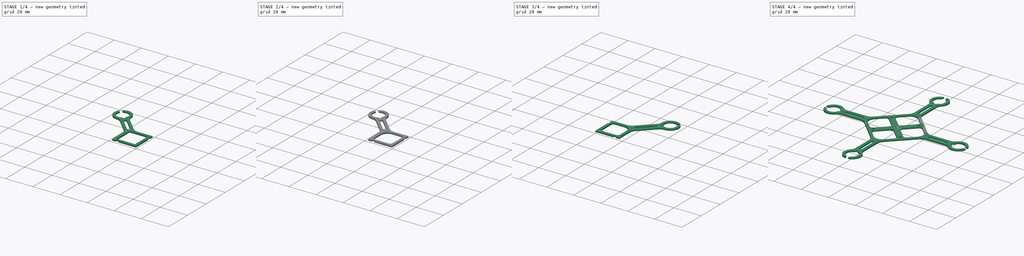
[diagram: build sequence overview — one tinted view per stage of 4, left to right]
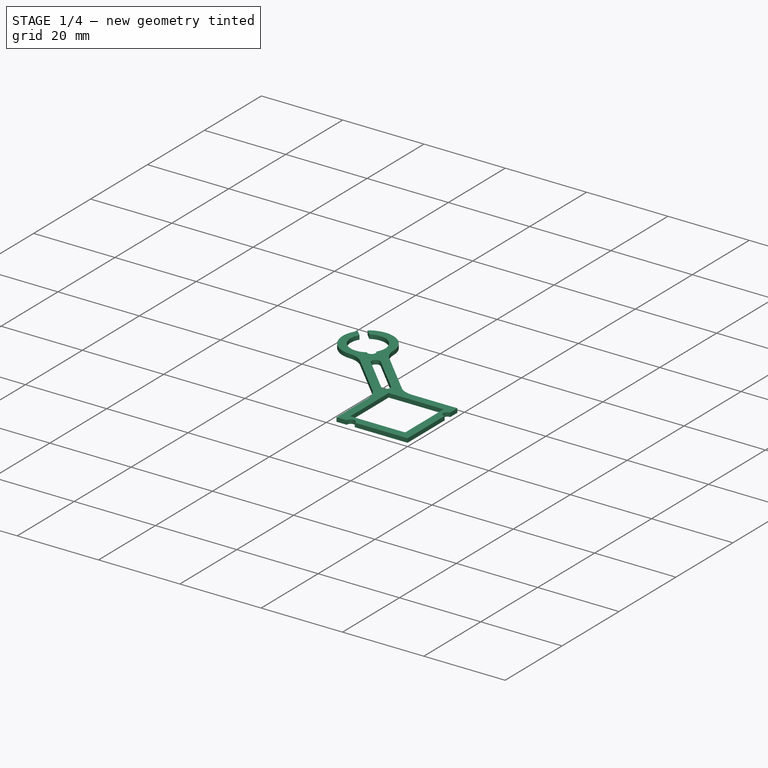
[diagram: stage 1 of 4 — iso view after this stage's code; geometry added in this stage tinted green]
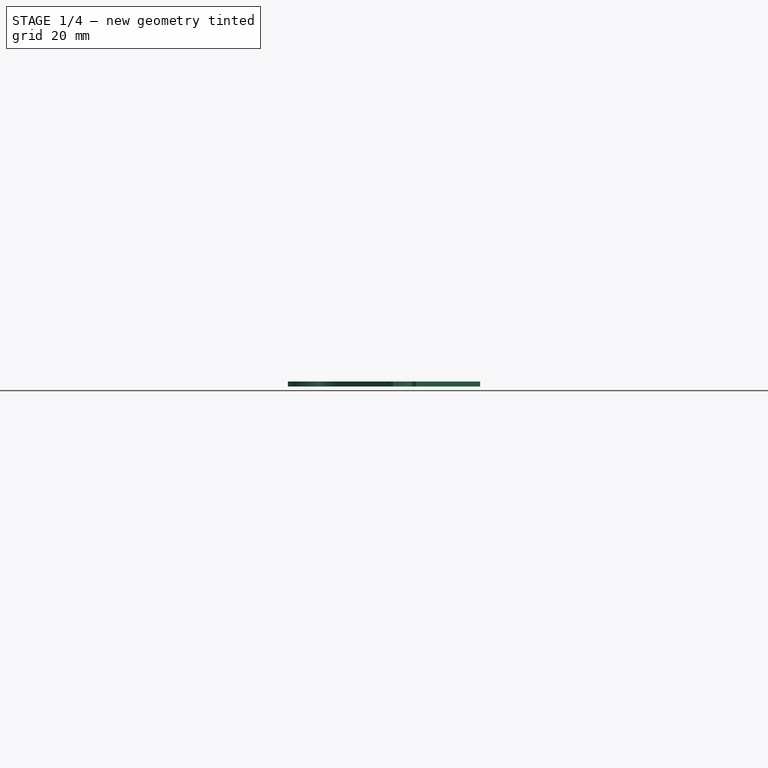
[diagram: stage 1 of 4 — front view after this stage's code; geometry added in this stage tinted green]
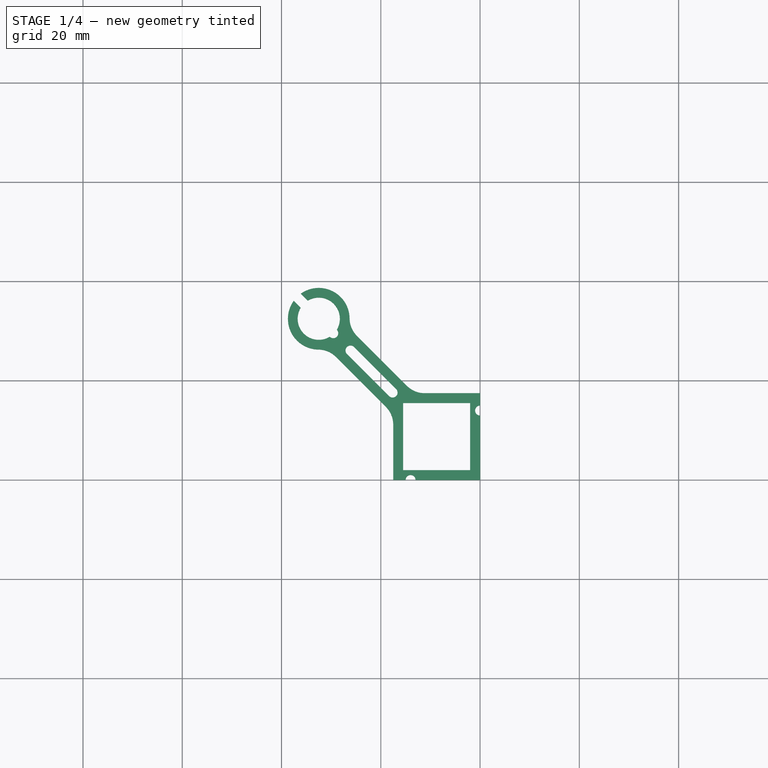
[diagram: stage 1 of 4 — top view after this stage's code; geometry added in this stage tinted green]
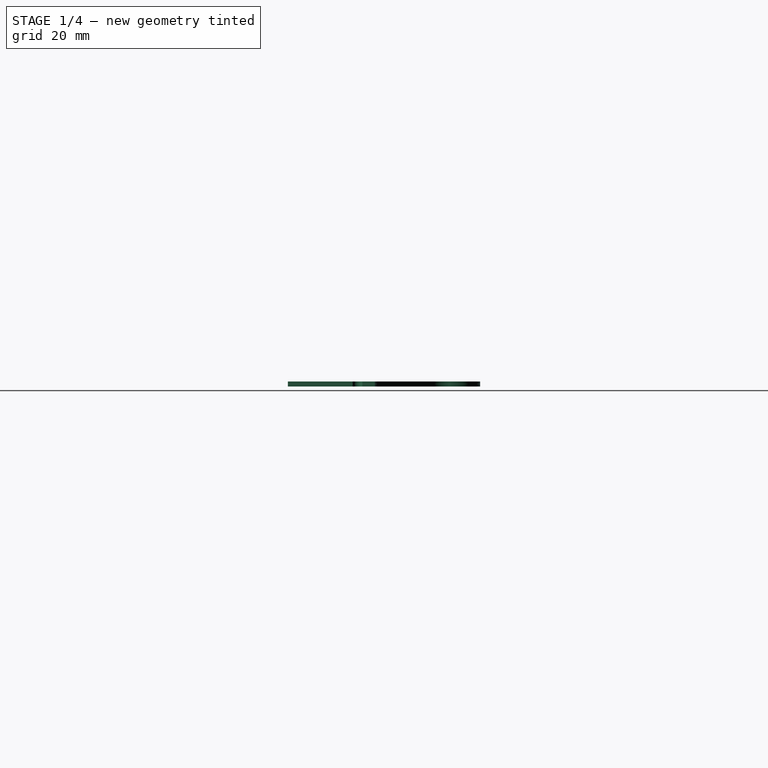
[diagram: stage 1 of 4 — right view after this stage's code; geometry added in this stage tinted green]
FCSTD DOCUMENT  (FreeCAD 0.16R6703 (Git))
Label: micro_kal_v2
License: All rights reserved
LicenseURL: http://en.wikipedia.org/wiki/All_rights_reserved
objects: App::FeaturePython×7, Drawing::FeatureViewPython×7, PartDesign::Fillet×4, Part::Mirroring×3, Sketcher::SketchObject×1, PartDesign::Pad×1, Part::MultiFuse×1, Drawing::FeatureViewPart×1, Drawing::FeaturePage×1
note: 11 computed .brp shape members not serialized (recipe doc carries the construction recipe); baked Part::Feature solids carry a one-line shape summary decoded from their .brp

FEATURE [Sketcher::SketchObject] Sketch
  sketch-geometry (33):
    g0: ArcOfCircle CenterX=-32.5 CenterY=32.5 CenterZ=0 NormalX=0 NormalY=0 NormalZ=1 Radius=6.2117 StartAngle=6.00182 EndAngle=8.47769
    g1: LineSegment StartX=-17.5 StartY=13.2574 StartZ=0 EndX=-17.5 EndY=0 EndZ=0
    g2: ArcOfCircle CenterX=-32.5 CenterY=32.5 CenterZ=0 NormalX=0 NormalY=0 NormalZ=1 Radius=6.2117 StartAngle=2.51788 EndAngle=4.99376
    g3: LineSegment StartX=-30.7752 StartY=26.5326 StartZ=0 EndX=-17.5 EndY=13.2574 EndZ=0
    g4: LineSegment StartX=0 StartY=17.5 StartZ=0 EndX=-13.2574 EndY=17.5 EndZ=0
    g5: LineSegment StartX=-26.5326 StartY=30.7752 StartZ=0 EndX=-13.2574 EndY=17.5 EndZ=0
    g6: LineSegment StartX=-15.5 StartY=15.5 StartZ=0 EndX=-2 EndY=15.5 EndZ=0
    g7: LineSegment StartX=-2 StartY=15.5 StartZ=0 EndX=-2 EndY=2 EndZ=0
    g8: LineSegment StartX=-2 StartY=2 StartZ=0 EndX=-15.5 EndY=2 EndZ=0
    g9: LineSegment StartX=-15.5 StartY=2 StartZ=0 EndX=-15.5 EndY=15.5 EndZ=0
    g10: ArcOfCircle CenterX=-14 CenterY=0 CenterZ=0 NormalX=0 NormalY=0 NormalZ=1 Radius=1 StartAngle=0 EndAngle=3.14159
    g11: ArcOfCircle CenterX=0 CenterY=14 CenterZ=0 NormalX=0 NormalY=0 NormalZ=1 Radius=1 StartAngle=1.5708 EndAngle=4.71239
    g12: LineSegment StartX=-17.5 StartY=0 StartZ=0 EndX=-15 EndY=0 EndZ=0
    g13: LineSegment StartX=-13 StartY=0 StartZ=0 EndX=0 EndY=0 EndZ=0
    g14: LineSegment StartX=0 StartY=13 StartZ=0 EndX=0 EndY=0 EndZ=0
    g15: LineSegment StartX=0 StartY=17.5 StartZ=0 EndX=0 EndY=15 EndZ=0
    g16: ArcOfCircle CenterX=-26.1066 CenterY=26.1066 CenterZ=0 NormalX=0 NormalY=0 NormalZ=1 Radius=1 StartAngle=0.785398 EndAngle=3.92699
    g17: ArcOfCircle CenterX=-17.6213 CenterY=17.6213 CenterZ=0 NormalX=0 NormalY=0 NormalZ=1 Radius=1 StartAngle=3.92699 EndAngle=7.06858
    g18: LineSegment StartX=-26.8137 StartY=25.3995 StartZ=0 EndX=-18.3284 EndY=16.9142 EndZ=0
    g19: LineSegment StartX=-25.3995 StartY=26.8137 StartZ=0 EndX=-16.9142 EndY=18.3284 EndZ=0
    g20: ArcOfCircle CenterX=-32.5 CenterY=32.5 CenterZ=0 NormalX=0 NormalY=0 NormalZ=1 Radius=4.25 StartAngle=5.73531 EndAngle=8.40186
    g21: ArcOfCircle CenterX=-32.5 CenterY=32.5 CenterZ=0 NormalX=0 NormalY=0 NormalZ=1 Radius=4.25 StartAngle=2.59372 EndAngle=5.26027
    g22: LineSegment [constr] StartX=-42.4264 StartY=42.4264 StartZ=0 EndX=0 EndY=0 EndZ=0
    g23: LineSegment [constr] StartX=-32.5 StartY=32.5 StartZ=0 EndX=-32.5 EndY=0 EndZ=0
    g24: LineSegment [constr] StartX=-32.5 StartY=32.5 StartZ=0 EndX=0 EndY=32.5 EndZ=0
    g25: LineSegment [constr] StartX=-17.5001 StartY=-7.3425e-05 StartZ=0 EndX=0.0190191 EndY=17.519 EndZ=0
    g26: LineSegment [constr] StartX=-26.8137 StartY=25.3995 StartZ=0 EndX=-25.3995 EndY=26.8137 EndZ=0
    g27: ArcOfCircle CenterX=-29.5792 CenterY=29.5792 CenterZ=0 NormalX=0 NormalY=0 NormalZ=1 Radius=1 StartAngle=3.92699 EndAngle=7.06858
    g28: LineSegment StartX=-37.5422 StartY=36.1279 StartZ=0 EndX=-36.1279 EndY=34.7137 EndZ=0
    g29: LineSegment StartX=-36.1279 StartY=37.5422 StartZ=0 EndX=-34.7137 EndY=36.1279 EndZ=0
    g30: LineSegment [constr] StartX=-36.1279 StartY=37.5422 StartZ=0 EndX=-37.5422 EndY=36.1279 EndZ=0
    g31: LineSegment [constr] StartX=-34.7137 StartY=36.1279 StartZ=0 EndX=-36.1279 EndY=34.7137 EndZ=0
    g32: LineSegment [constr] StartX=-30.2863 StartY=28.8721 StartZ=0 EndX=-28.8721 EndY=30.2863 EndZ=0
  constraints (102):
    c: Vertical(g1)
    c: Equal(g0,g2)
    c: Coincident(g0,g2)
    c: Coincident(g3,g2)
    c: Coincident(g3,g1)
    c: Horizontal(g4)
    c: Coincident(g5,g0)
    c: Coincident(g5,g4)
    c: Parallel(g5,g3)
    c: Equal(g3,g5)
    c: Angle(g20,g21) = 0.523599
    c: Coincident(g6,g7)
    c: Coincident(g7,g8)
    c: Coincident(g8,g9)
    c: Coincident(g9,g6)
    c: Horizontal(g6)
    c: Vertical(g7)
    c: Vertical(g9)
    c: Equal(g6,g7)
    c: Equal(g7,g9)
    c: PointOnObject(g10,g-1)
    c: Equal(g10,g11)
    c: Radius(g10) = 1
    c: PointOnObject(g1,g-1)
    c: Distance(g4,g1) = 6
    c: Coincident(g12,g1)
    c: Horizontal(g12)
    c: Coincident(g13,g-1)
    c: Horizontal(g13)
    c: Coincident(g15,g4)
    c: Vertical(g15)
    c: Coincident(g11,g15)
    c: Coincident(g10,g13)
    c: Coincident(g10,g12)
    c: DistanceX(g1,g-1) = 17.5
    c: Tangent(g16,g19) = 1.5708
    c: Tangent(g16,g18) = -1.5708
    c: Tangent(g18,g17) = -1.5708
    c: Tangent(g19,g17) = 1.5708
    c: Equal(g16,g17)
    c: Parallel(g3,g18)
    c: Distance(g19) = 12
    c: Distance(g17,g6) = 3
    c: Radius(g20) = 4.25
    c: Equal(g1,g4)
    c: Angle(g13,g5) = 2.35619
    c: Coincident(g22,g-1)
    c: Coincident(g14,g11)
    c: Vertical(g14)
    c: Coincident(g-1,g14)
    c: Distance(g22) = 60
    c: Coincident(g23,g0)
    c: PointOnObject(g23,g-1)
    c: Vertical(g23)
    c: Coincident(g24,g0)
    c: PointOnObject(g24,g-2)
    c: Horizontal(g24)
    c: Equal(g24,g23)
    c: DistanceY(g23,g23) = 32.5
    c: Equal(g13,g14)
    c: DistanceX(g13,g13) = 13
    c: PointOnObject(g6,g22)
    c: PointOnObject(g16,g22)
    c: Coincident(g26,g16)
    c: Coincident(g26,g16)
    c: Angle(g20,g21) = 0.174533
    c: Coincident(g21,g0)
    c: Coincident(g20,g0)
    c: Distance(g26) = 2
    c: PointOnObject(g27,g22)
    c: Symmetric(g27,g27,g22)
    c: Radius(g27) = 1
    c: PointOnObject(g20,g27)
    c: PointOnObject(g21,g27)
    c: Coincident(g27,g21)
    c: Coincident(g28,g2)
    c: Coincident(g28,g21)
    c: Coincident(g27,g20)
    c: Equal(g21,g20)
    c: Symmetric(g2,g0,g22)
    c: Coincident(g29,g0)
    c: Coincident(g29,g20)
    c: Symmetric(g20,g21,g22)
    c: Coincident(g30,g0)
    c: Coincident(g30,g2)
    c: Coincident(g31,g20)
    c: Coincident(g31,g21)
    c: Distance(g31) = 2
    c: Equal(g30,g31)
    c: DistanceY(g6,g4) = 2
    c: PointOnObject(g4,g25)
    c: DistanceX(g7,g-1) = 2
    c: PointOnObject(g6,g25)
    c: Equal(g6,g8)
    c: Equal(g4,g1)
    c: PointOnObject(g11,g-2)
    c: PointOnObject(g11,g-2)
    c: Distance(g29) = 2
    c: Equal(g28,g29)
    c: Coincident(g32,g21)
    c: Coincident(g32,g20)
    c: PointOnObject(g27,g32)
FEATURE [PartDesign::Pad] Pad
  Length = 1
  Length2 = 100
  Sketch = -> Sketch
  Type = 0
FEATURE [PartDesign::Fillet] Fillet
  Base = -> Pad [Edge26,Edge5,Edge2,Edge29]
  Radius = 5
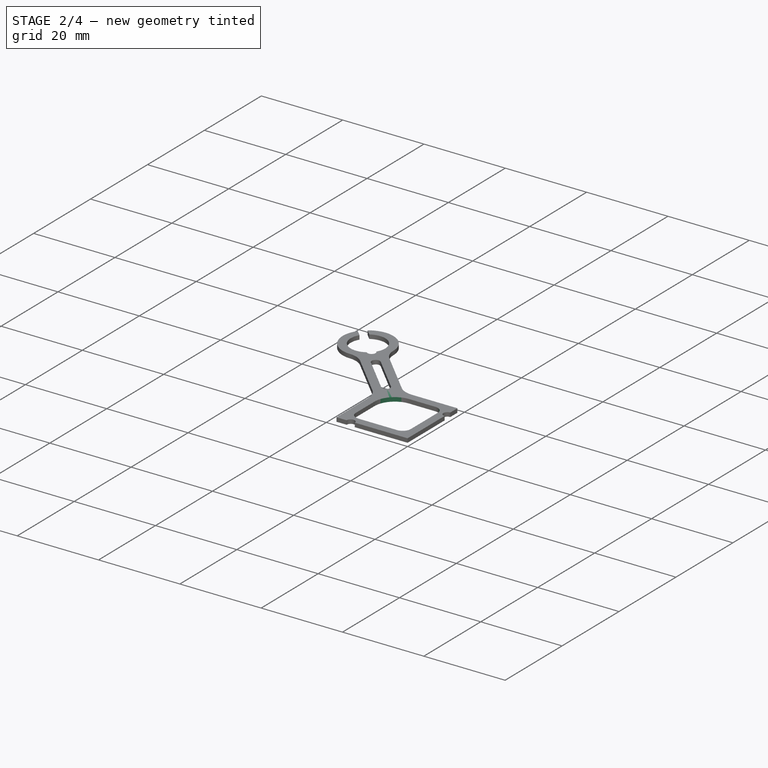
[diagram: stage 2 of 4 — iso view after this stage's code; geometry added in this stage tinted green]
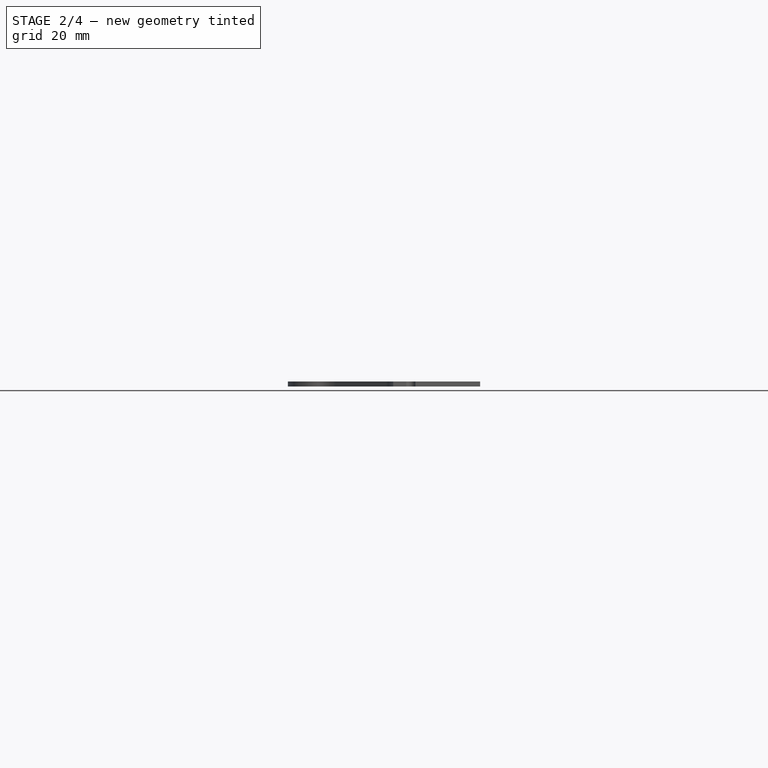
[diagram: stage 2 of 4 — front view after this stage's code; geometry added in this stage tinted green]
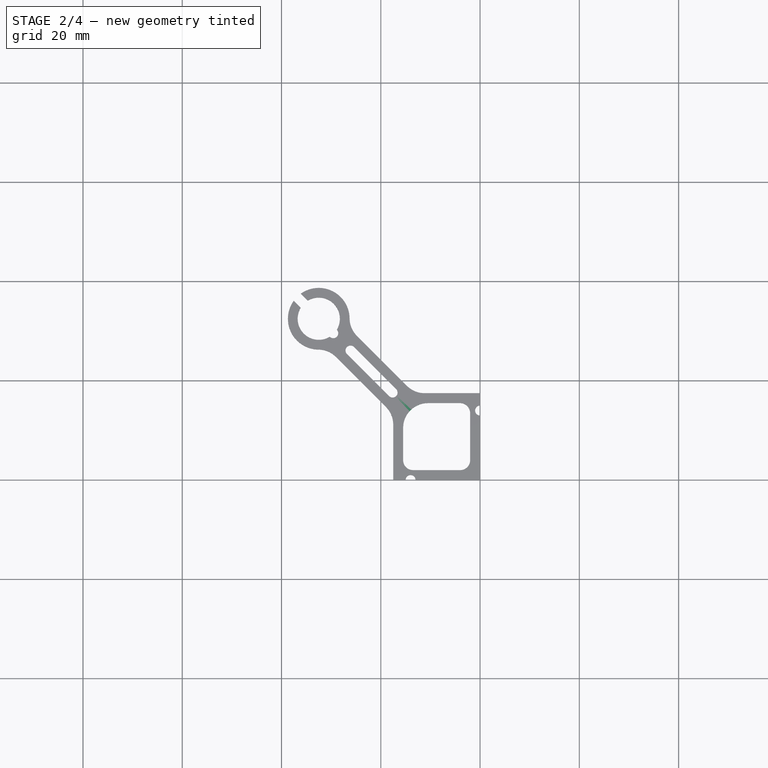
[diagram: stage 2 of 4 — top view after this stage's code; geometry added in this stage tinted green]
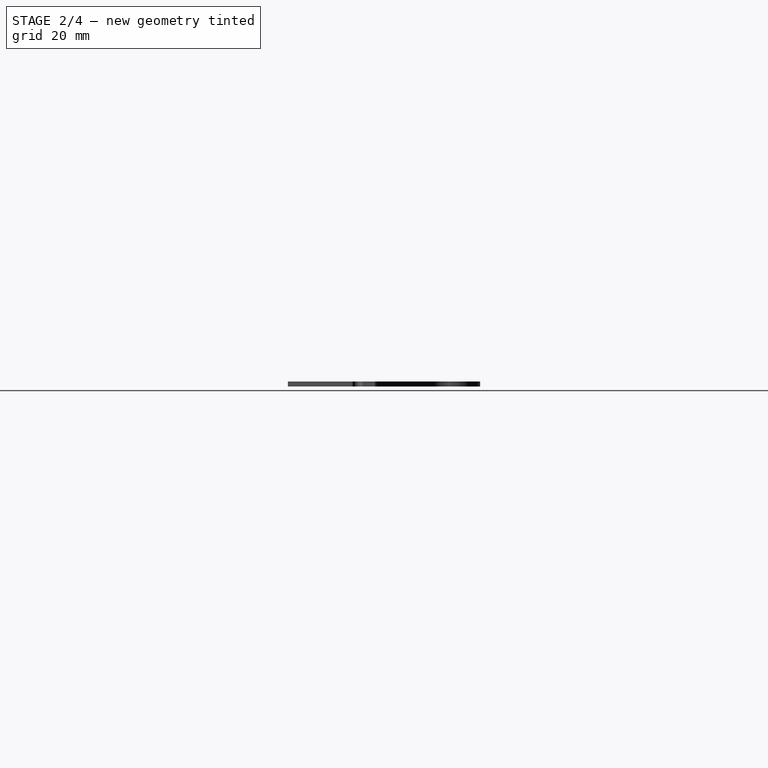
[diagram: stage 2 of 4 — right view after this stage's code; geometry added in this stage tinted green]
FEATURE [PartDesign::Fillet] Fillet001
  Base = -> Fillet [Edge80]
  Radius = 5
FEATURE [PartDesign::Fillet] Fillet002
  Base = -> Fillet001 [Edge32,Edge36,Edge38]
  Radius = 2
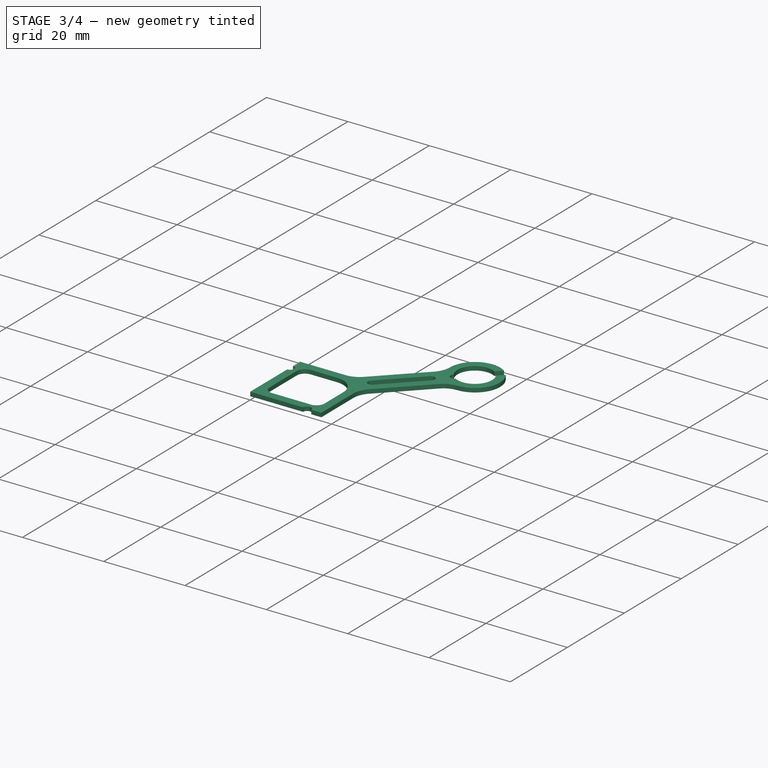
[diagram: stage 3 of 4 — iso view after this stage's code; geometry added in this stage tinted green]
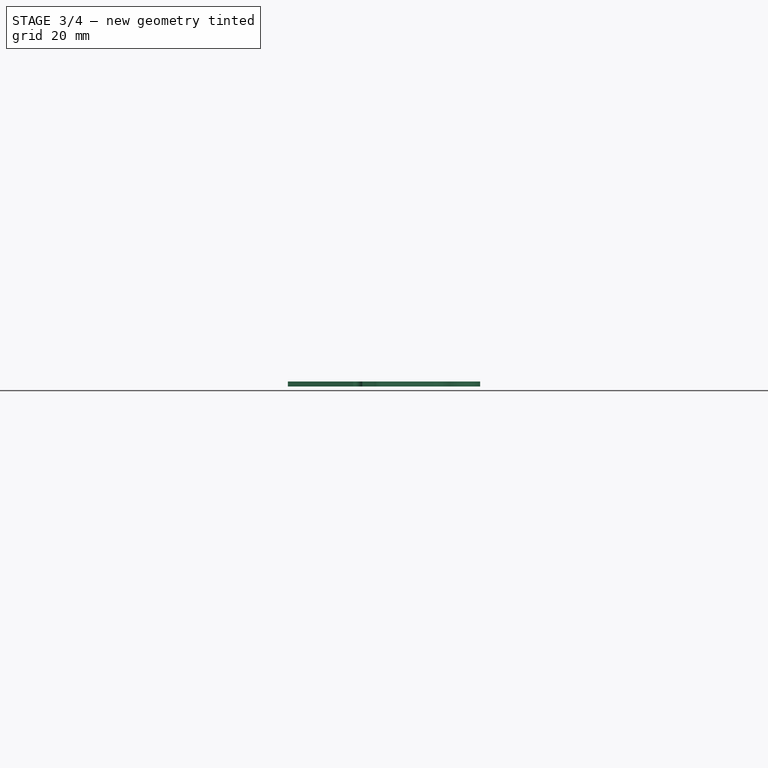
[diagram: stage 3 of 4 — front view after this stage's code; geometry added in this stage tinted green]
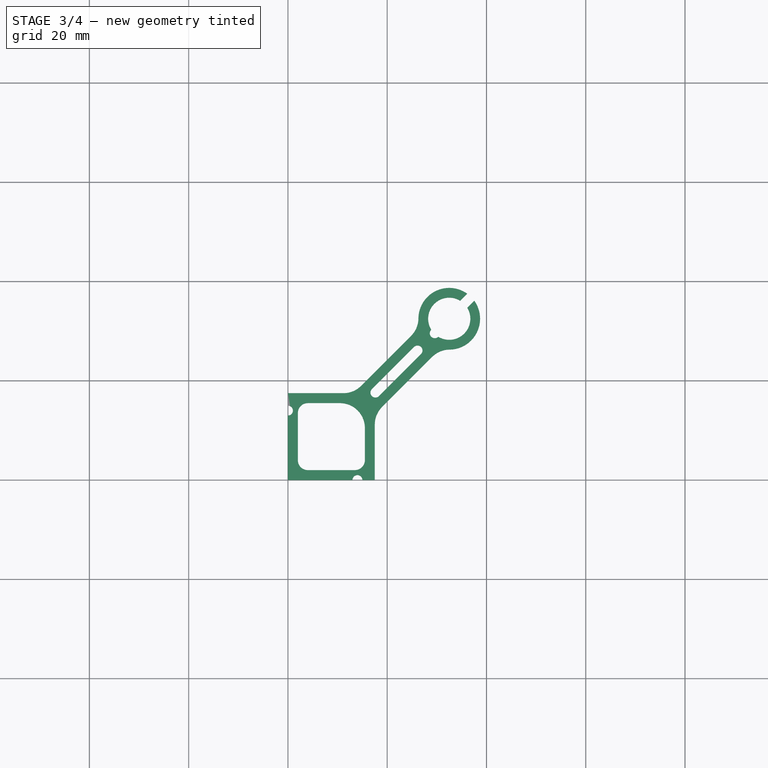
[diagram: stage 3 of 4 — top view after this stage's code; geometry added in this stage tinted green]
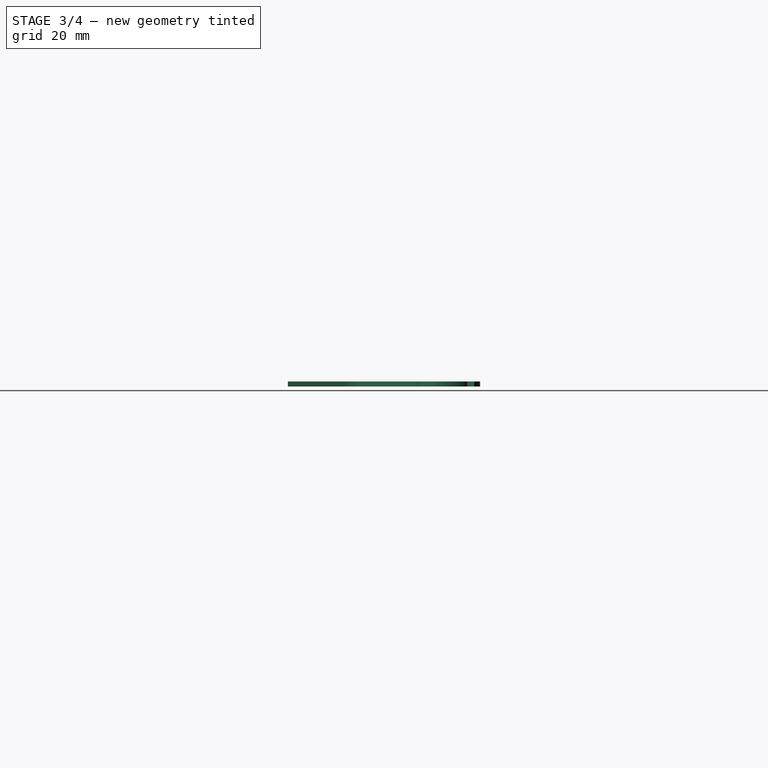
[diagram: stage 3 of 4 — right view after this stage's code; geometry added in this stage tinted green]
FEATURE [Part::Mirroring] Part__Mirroring  label="Fillet002 (Mirror #1)"
  Base = (0,0,0)
  Normal = (0,1,0)
  Source = -> Fillet002
FEATURE [Part::Mirroring] Part__Mirroring001  label="Fillet002 (Mirror #2)"
  Base = (0,0,0)
  Normal = (1,0,0)
  Source = -> Part__Mirroring
FEATURE [Part::Mirroring] Part__Mirroring002  label="Fillet002 (Mirror #3)"
  Base = (0,0,0)
  Normal = (0,1,0)
  Source = -> Part__Mirroring001
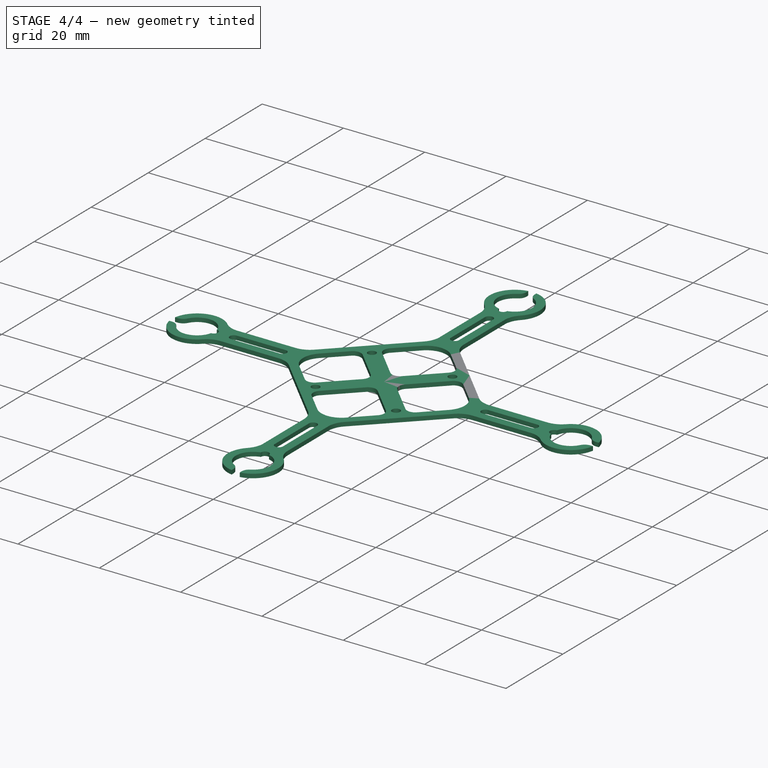
[diagram: stage 4 of 4 — iso view after this stage's code; geometry added in this stage tinted green]
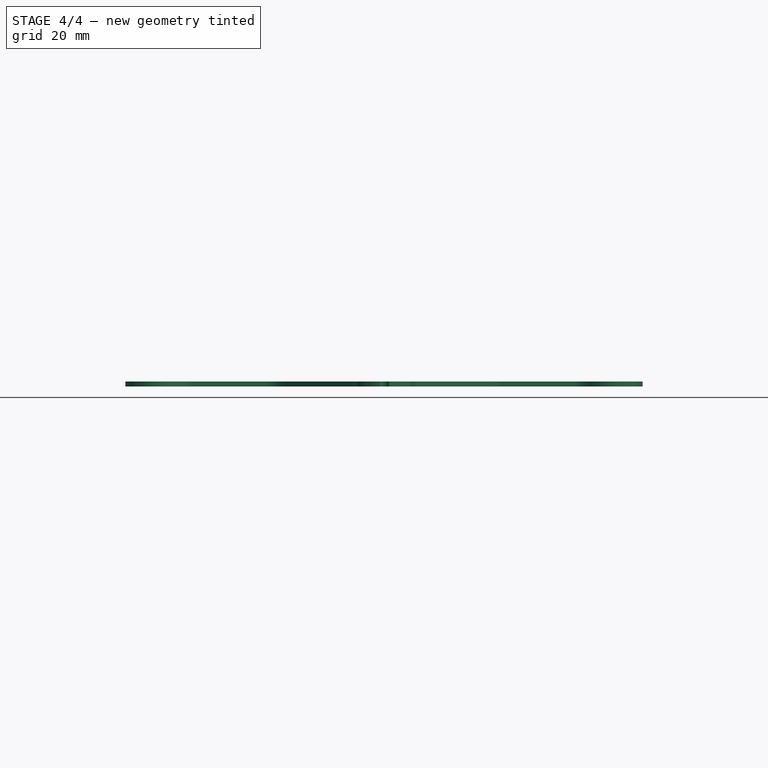
[diagram: stage 4 of 4 — front view after this stage's code; geometry added in this stage tinted green]
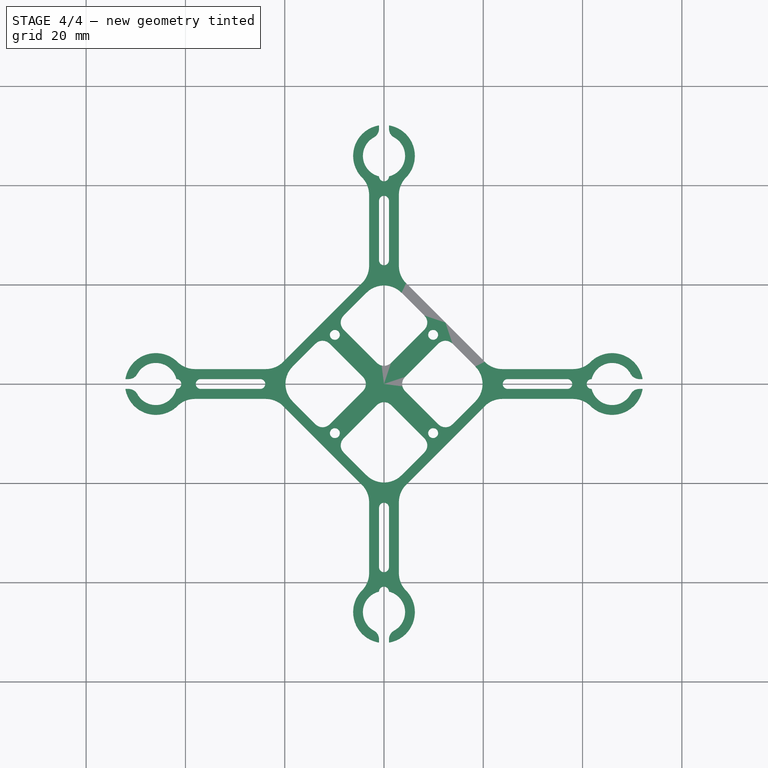
[diagram: stage 4 of 4 — top view after this stage's code; geometry added in this stage tinted green]
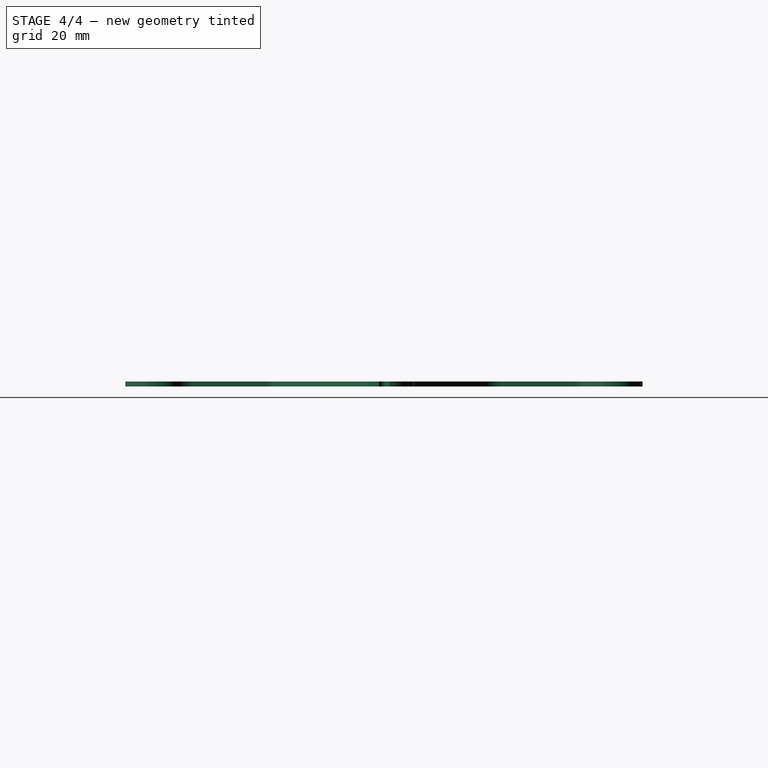
[diagram: stage 4 of 4 — right view after this stage's code; geometry added in this stage tinted green]
FEATURE [Part::MultiFuse] Fusion
  Shapes = -> [Part__Mirroring002,Part__Mirroring,Fillet002,Part__Mirroring001]
FEATURE [App::FeaturePython] Dimension  # Draft dimension (typed FeaturePython)
  Dimline = (-38.84,38.6043,0)
  Direction = (0,0,0)
  Distance = 2
  End = (-36.1279,37.5422,1)
  Normal = (0,0,1)
  Start = (-37.5422,36.1279,1)
FEATURE [App::FeaturePython] Dimension001  # Draft dimension (typed FeaturePython)
  Dimline = (-0.145387,22.3566,0)
  Direction = (0,0,0)
  Distance = 2
  End = (1,14,1)
  Normal = (0,0,1)
  Start = (-1,14,1)
FEATURE [App::FeaturePython] Dimension002  # Draft dimension (typed FeaturePython)
  Dimline = (39.493,40.7819,0)
  Direction = (0,0,0)
  Distance = 8.5
  End = (35.5052,29.4948,1)
  Normal = (0,0,1)
  Start = (29.4948,35.5052,1)
FEATURE [App::FeaturePython] Dimension003  # Draft dimension (typed FeaturePython)
  Dimline = (-31.9917,-31.9292,0)
  Direction = (0,0,0)
  Distance = 2
  End = (-30.2863,-28.8721,1)
  Normal = (0,0,1)
  Start = (-28.8721,-30.2863,1)
FEATURE [App::FeaturePython] Dimension004  # Draft dimension (typed FeaturePython)
  Dimline = (-11.4715,-12.1916,0)
  Direction = (0,0,0)
  Distance = 2
  End = (-16.9142,-18.3284,1)
  Normal = (0,0,1)
  Start = (-18.3284,-16.9142,1)
FEATURE [Drawing::FeatureViewPart] View
  Direction = (0,0,1)
  HiddenWidth = 0.15
  LineWidth = 0.35
  Rotation = 45
  ShowHiddenLines = false
  ShowSmoothLines = false
  Source = -> Fusion
  Tolerance = 0.05
  ViewResult = <blob: 7014 chars omitted>
  Visible = true
  X = 125
  Y = 80
FEATURE [Drawing::FeatureViewPython] ViewDimension004  # drawing view (typed FeaturePython)
  Direction = (0,0,0)
  FillStyle = 0
  FontSize = 10
  LineStyle = 0
  LineWidth = 0.35
  Rotation = 0
  Source = -> Dimension004
  ViewResult = <g id="ViewDimension004" transform="rotate(0.0,125.0,80.0) translate(125.0,80.0) scale(1.0,-1.0)"><path d="M -18.3284271248 -16.9142135624 L -12.5386898043 -11.1244762419 L -11.1244762419 -12.5386898043 L -16.9142135624 -18.3284271248" fill="none" stroke="#0000ff" stroke-width="0.35 px" style="stroke-width:0.35;stroke-miterlimit:4;stroke-dasharray:none" freecad:basepoint1="-18.3284271248 -16.9142135624" freecad:basepoint2="-16.9142135624 -18.3284271248" freecad:dimpoint="-12.5386898043 -11.1244762419"/>\n<path transform="rotate(134.999999418,-12.5386898043,-11.1244762419) translate(-12.5386898043,-11.1244762419) scale(1.33333333333,1.33333333333)" freecad:skip="1" fill="#0000ff" stroke="none" style="stroke-miterlimit:4;stroke-dasharray:none" d="M 0 0 L 4 1 L 4 -1 Z"/>\n<path transform="rotate(314.999999418,-11.1244762419,-12.5386898043) translate(-11.1244762419,-12.5386898043) scale(1.33333333333,1.33333333333)" freecad:skip="1" fill="#0000ff" stroke="none" style="stroke-miterlimit:4;stroke-dasharray:none" d="M 0 0 L 4 1 L 4 -1 Z"/>\n<text fill="#0000ff" font-size="5.0" style="text-anchor:middle;text-align:center;font-family:" transform="rotate(-45.0000005825,-9.71026267954,-9.71026267954) translate(-9.71026267954,-9.71026267954) scale(1,-1) " freecad:skip="1">\n2 mm</text>\n</g>
  Visible = true
  X = 125
  Y = 80
FEATURE [Drawing::FeatureViewPython] ViewDimension003  # drawing view (typed FeaturePython)
  Direction = (0,0,0)
  FillStyle = 0
  FontSize = 5
  LineStyle = 0
  LineWidth = 0.35
  Rotation = 0
  Source = -> Dimension003
  ViewResult = <g id="ViewDimension003" transform="rotate(0.0,125.0,80.0) translate(125.0,80.0) scale(1.0,-1.0)"><path d="M -28.8720628574 -30.2862764198 L -31.2533805846 -32.667594147 L -32.667594147 -31.2533805846 L -30.2862764198 -28.8720628574" fill="none" stroke="#0000ff" stroke-width="0.35 px" style="stroke-width:0.35;stroke-miterlimit:4;stroke-dasharray:none" freecad:basepoint1="-28.8720628574 -30.2862764198" freecad:basepoint2="-30.2862764198 -28.8720628574" freecad:dimpoint="-31.2533805846 -32.667594147"/>\n<path transform="rotate(314.999999418,-31.2533805846,-32.667594147) translate(-31.2533805846,-32.667594147) scale(0.666666666667,0.666666666667)" freecad:skip="1" fill="#0000ff" stroke="none" style="stroke-miterlimit:4;stroke-dasharray:none" d="M 0 0 L 4 1 L 4 -1 Z"/>\n<path transform="rotate(494.999999418,-32.667594147,-31.2533805846) translate(-32.667594147,-31.2533805846) scale(0.666666666667,0.666666666667)" freecad:skip="1" fill="#0000ff" stroke="none" style="stroke-miterlimit:4;stroke-dasharray:none" d="M 0 0 L 4 1 L 4 -1 Z"/>\n<text fill="#0000ff" font-size="2.5" style="text-anchor:middle;text-align:center;font-family:" transform="rotate(-45.0000005825,-34.0,-34.0) translate(-34.0,-34.0) scale(1,-1) " freecad:skip="1">\n2 mm</text>\n</g>
  Visible = true
  X = 125
  Y = 80
FEATURE [Drawing::FeatureViewPython] ViewDimension002  # drawing view (typed FeaturePython)
  Direction = (0,0,0)
  FillStyle = 0
  FontSize = 12
  LineStyle = 0
  LineWidth = 0.35
  Rotation = 0
  Source = -> Dimension002
  ViewResult = <g id="ViewDimension002" transform="rotate(0.0,125.0,80.0) translate(125.0,80.0) scale(1.0,-1.0)"><path d="M 30.0912769141 36.1016845541 L 37.1322320931 43.1426397331 L 43.1426397331 37.1322320931 L 36.1016845541 30.0912769141" fill="none" stroke="#0000ff" stroke-width="0.35 px" style="stroke-width:0.35;stroke-miterlimit:4;stroke-dasharray:none" freecad:basepoint1="30.0912769141 36.1016845541" freecad:basepoint2="36.1016845541 30.0912769141" freecad:dimpoint="37.1322320931 43.1426397331"/>\n<path transform="rotate(134.999999418,37.1322320931,43.1426397331) translate(37.1322320931,43.1426397331) scale(1.33333333333,1.33333333333)" freecad:skip="1" fill="#0000ff" stroke="none" style="stroke-miterlimit:4;stroke-dasharray:none" d="M 0 0 L 4 1 L 4 -1 Z"/>\n<path transform="rotate(314.999999418,43.1426397331,37.1322320931) translate(43.1426397331,37.1322320931) scale(1.33333333333,1.33333333333)" freecad:skip="1" fill="#0000ff" stroke="none" style="stroke-miterlimit:4;stroke-dasharray:none" d="M 0 0 L 4 1 L 4 -1 Z"/>\n<text fill="#0000ff" font-size="6.0" style="text-anchor:middle;text-align:center;font-family:" transform="rotate(-45.0000005825,42.2587562566,42.2587562566) translate(42.2587562566,42.2587562566) scale(1,-1) " freecad:skip="1">\n8.5 mm</text>\n</g>
  Visible = true
  X = 125
  Y = 80
FEATURE [Drawing::FeatureViewPython] ViewDimension001  # drawing view (typed FeaturePython)
  Direction = (0,0,0)
  FillStyle = 0
  FontSize = 12
  LineStyle = 0
  LineWidth = 0.35
  Rotation = 0
  Source = -> Dimension001
  ViewResult = <g id="ViewDimension001" transform="rotate(0.0,125.0,80.0) translate(125.0,80.0) scale(1.0,-1.0)"><path d="M -1.0 14.0 L -1.0 22.3565788269 L 1.0 22.3565788269 L 1.0 14.0" fill="none" stroke="#0000ff" stroke-width="0.35 px" style="stroke-width:0.35;stroke-miterlimit:4;stroke-dasharray:none" freecad:basepoint1="-1.0 14.0" freecad:basepoint2="1.0 14.0" freecad:dimpoint="-1.0 22.3565788269"/>\n<path transform="rotate(180.0,-1.0,22.3565788269) translate(-1.0,22.3565788269) scale(1.33333333333,1.33333333333)" freecad:skip="1" fill="#0000ff" stroke="none" style="stroke-miterlimit:4;stroke-dasharray:none" d="M 0 0 L 4 1 L 4 -1 Z"/>\n<path transform="rotate(360.0,1.0,22.3565788269) translate(1.0,22.3565788269) scale(1.33333333333,1.33333333333)" freecad:skip="1" fill="#0000ff" stroke="none" style="stroke-miterlimit:4;stroke-dasharray:none" d="M 0 0 L 4 1 L 4 -1 Z"/>\n<text fill="#0000ff" font-size="6.0" style="text-anchor:middle;text-align:center;font-family:" transform="rotate(-0.0,0.0,25.3565788269) translate(0.0,25.3565788269) scale(1,-1) " freecad:skip="1">\n2 mm</text>\n</g>
  Visible = true
  X = 125
  Y = 80
FEATURE [Drawing::FeatureViewPython] ViewDimension  # drawing view (typed FeaturePython)
  Direction = (0,0,0)
  FillStyle = 0
  FontSize = 12
  LineStyle = 0
  LineWidth = 0.35
  Rotation = 0
  Source = -> Dimension
  ViewResult = <g id="ViewDimension" transform="rotate(0.0,125.0,80.0) translate(125.0,80.0) scale(1.0,-1.0)"><path d="M -37.5421507049 36.1279371426 L -39.4292346956 38.0150211333 L -38.0150211333 39.4292346956 L -36.1279371426 37.5421507049" fill="none" stroke="#0000ff" stroke-width="0.35 px" style="stroke-width:0.35;stroke-miterlimit:4;stroke-dasharray:none" freecad:basepoint1="-37.5421507049 36.1279371426" freecad:basepoint2="-36.1279371426 37.5421507049" freecad:dimpoint="-39.4292346956 38.0150211333"/>\n<path transform="rotate(225.000000582,-39.4292346956,38.0150211333) translate(-39.4292346956,38.0150211333) scale(1.33333333333,1.33333333333)" freecad:skip="1" fill="#0000ff" stroke="none" style="stroke-miterlimit:4;stroke-dasharray:none" d="M 0 0 L 4 1 L 4 -1 Z"/>\n<path transform="rotate(405.000000582,-38.0150211333,39.4292346956) translate(-38.0150211333,39.4292346956) scale(1.33333333333,1.33333333333)" freecad:skip="1" fill="#0000ff" stroke="none" style="stroke-miterlimit:4;stroke-dasharray:none" d="M 0 0 L 4 1 L 4 -1 Z"/>\n<text fill="#0000ff" font-size="6.0" style="text-anchor:middle;text-align:center;font-family:" transform="rotate(45.0000005825,-40.843448258,40.843448258) translate(-40.843448258,40.843448258) scale(1,-1) " freecad:skip="1">\n2 mm</text>\n</g>
  Visible = true
  X = 125
  Y = 80
FEATURE [App::FeaturePython] Dimension005  # Draft dimension (typed FeaturePython)
  Dimline = (9.90837,-43.8156,0)
  Direction = (0,0,0)
  Distance = 77.3854
  End = (38.6931,-32.9801,1)
  Normal = (0,0,1)
  Start = (-38.6923,-32.9838,1)
FEATURE [Drawing::FeatureViewPython] ViewDimension005  # drawing view (typed FeaturePython)
  Direction = (0,0,0)
  FillStyle = 0
  FontSize = 12
  LineStyle = 0
  LineWidth = 0.35
  Rotation = 0
  Source = -> Dimension005
  ViewResult = <g id="ViewDimension005" transform="rotate(0.0,125.0,80.0) translate(125.0,80.0) scale(1.0,-1.0)"><path d="M -38.6922722411 -33.860222024 L -38.6917961057 -43.8178946931 L 38.6936370913 -43.8141944368 L 38.6931609559 -33.8565217677" fill="none" stroke="#0000ff" stroke-width="0.35 px" style="stroke-width:0.35;stroke-miterlimit:4;stroke-dasharray:none" freecad:basepoint1="-38.6922722411 -33.860222024" freecad:basepoint2="38.6931609559 -33.8565217677" freecad:dimpoint="-38.6917961057 -43.8178946931"/>\n<path transform="rotate(0.00273965081202,-38.6917961057,-43.8178946931) translate(-38.6917961057,-43.8178946931) scale(1.33333333333,1.33333333333)" freecad:skip="1" fill="#0000ff" stroke="none" style="stroke-miterlimit:4;stroke-dasharray:none" d="M 0 0 L 4 1 L 4 -1 Z"/>\n<path transform="rotate(180.002739651,38.6936370913,-43.8141944368) translate(38.6936370913,-43.8141944368) scale(1.33333333333,1.33333333333)" freecad:skip="1" fill="#0000ff" stroke="none" style="stroke-miterlimit:4;stroke-dasharray:none" d="M 0 0 L 4 1 L 4 -1 Z"/>\n<text fill="#0000ff" font-size="6.0" style="text-anchor:middle;text-align:center;font-family:" transform="rotate(0.00273965081202,0.000777044974091,-40.8160445684) translate(0.000777044974091,-40.8160445684) scale(1,-1) " freecad:skip="1">\n77.4 mm</text>\n</g>
  Visible = true
  X = 125
  Y = 80
FEATURE [App::FeaturePython] Dimension006  # Draft dimension (typed FeaturePython)
  Dimline = (42.2353,-12.7394,0)
  Direction = (0,0,0)
  Distance = 65
  End = (32.5,-32.5,1)
  Normal = (0,0,1)
  Start = (32.5,32.5,1)
FEATURE [Drawing::FeatureViewPython] ViewDimension006  # drawing view (typed FeaturePython)
  Direction = (0,0,0)
  FillStyle = 0
  FontSize = 12
  LineStyle = 0
  LineWidth = 0.35
  Rotation = 0
  Source = -> Dimension006
  ViewResult = <g id="ViewDimension006" transform="rotate(0.0,125.0,80.0) translate(125.0,80.0) scale(1.0,-1.0)"><path d="M 32.5 32.5 L 42.2352981567 32.5 L 42.2352981567 -32.5 L 32.5 -32.5" fill="none" stroke="#0000ff" stroke-width="0.35 px" style="stroke-width:0.35;stroke-miterlimit:4;stroke-dasharray:none" freecad:basepoint1="32.5 32.5" freecad:basepoint2="32.5 -32.5" freecad:dimpoint="42.2352981567 32.5"/>\n<path transform="rotate(-90.0,42.2352981567,32.5) translate(42.2352981567,32.5) scale(1.33333333333,1.33333333333)" freecad:skip="1" fill="#0000ff" stroke="none" style="stroke-miterlimit:4;stroke-dasharray:none" d="M 0 0 L 4 1 L 4 -1 Z"/>\n<path transform="rotate(90.0,42.2352981567,-32.5) translate(42.2352981567,-32.5) scale(1.33333333333,1.33333333333)" freecad:skip="1" fill="#0000ff" stroke="none" style="stroke-miterlimit:4;stroke-dasharray:none" d="M 0 0 L 4 1 L 4 -1 Z"/>\n<text fill="#0000ff" font-size="6.0" style="text-anchor:middle;text-align:center;font-family:" transform="rotate(-90.0,45.2352981567,0.0) translate(45.2352981567,0.0) scale(1,-1) " freecad:skip="1">\n65 mm</text>\n</g>
  Visible = true
  X = 125
  Y = 80
FEATURE [Drawing::FeaturePage] Page
  EditableTexts = Alberto Romay  | 06.09.2016 | 1:1 | n/a | Micro Kal | v1.3 | 1 | 1
  Group = -> [View,ViewDimension004,ViewDimension003,ViewDimension002,ViewDimension001,ViewDimension,ViewDimension005,ViewDimension006]
FEATURE [PartDesign::Fillet] Fillet003
  Base = -> Fusion [Edge259,Edge265,Edge139,Edge145,Edge294,Edge289,Edge349,Edge344]
  Placement = pos=(0,0,0) rot=(0,0,1;0.785387rad)
  Radius = 2
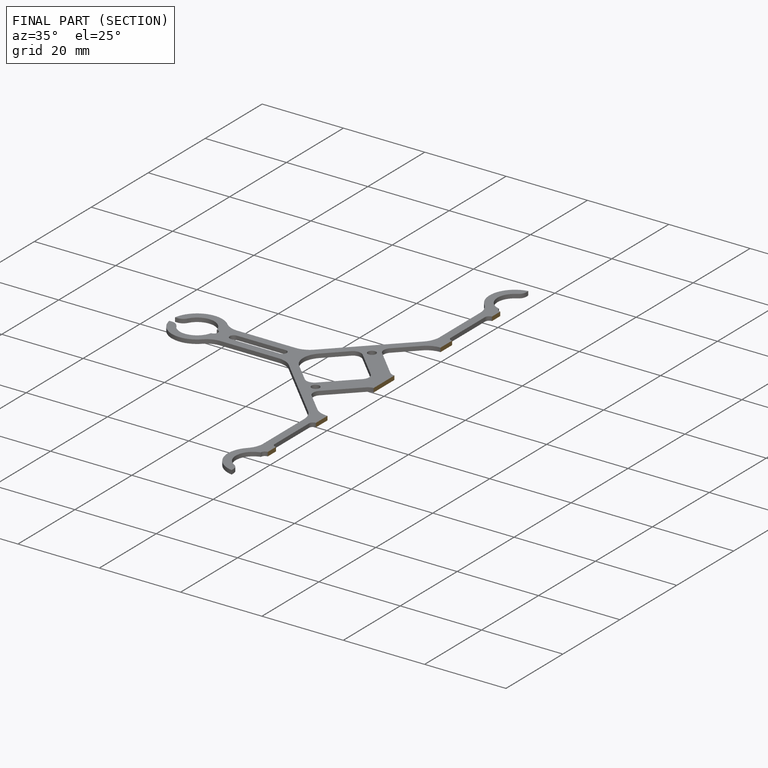
[diagram: finished part — half-section view (interior)]
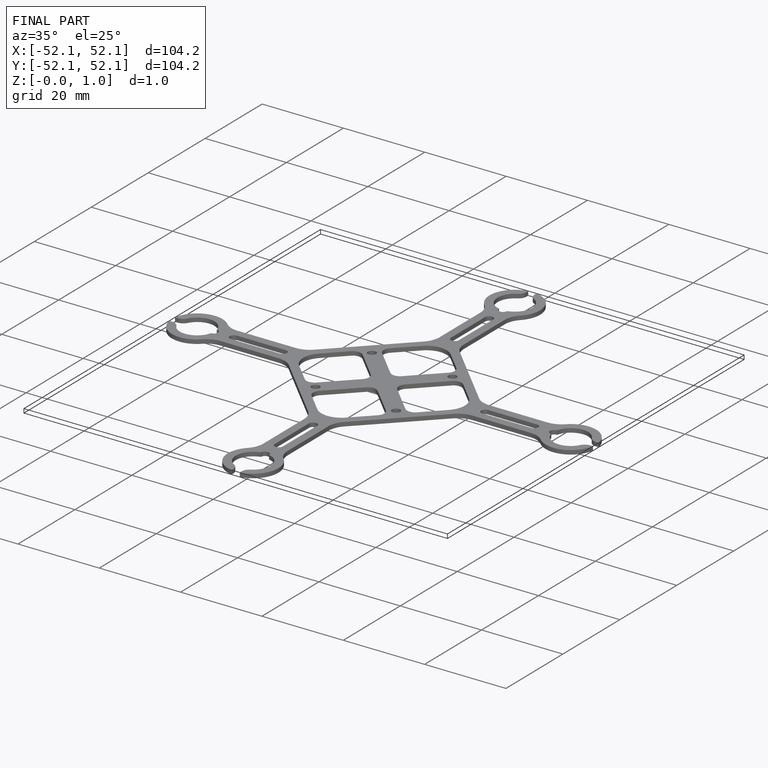
[diagram: finished part — iso view with bounding-box wireframe]
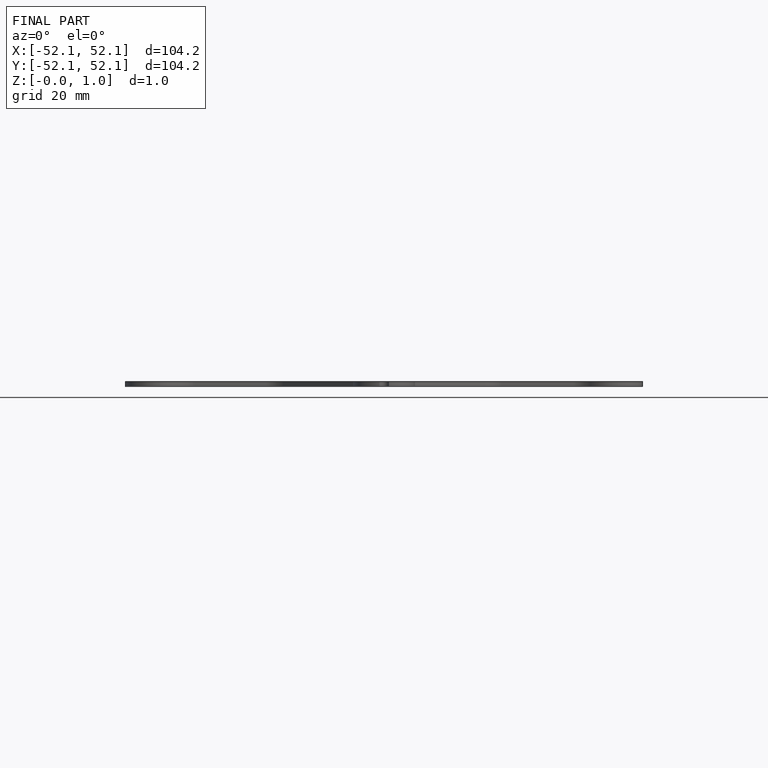
[diagram: finished part — front view with bounding-box wireframe]
